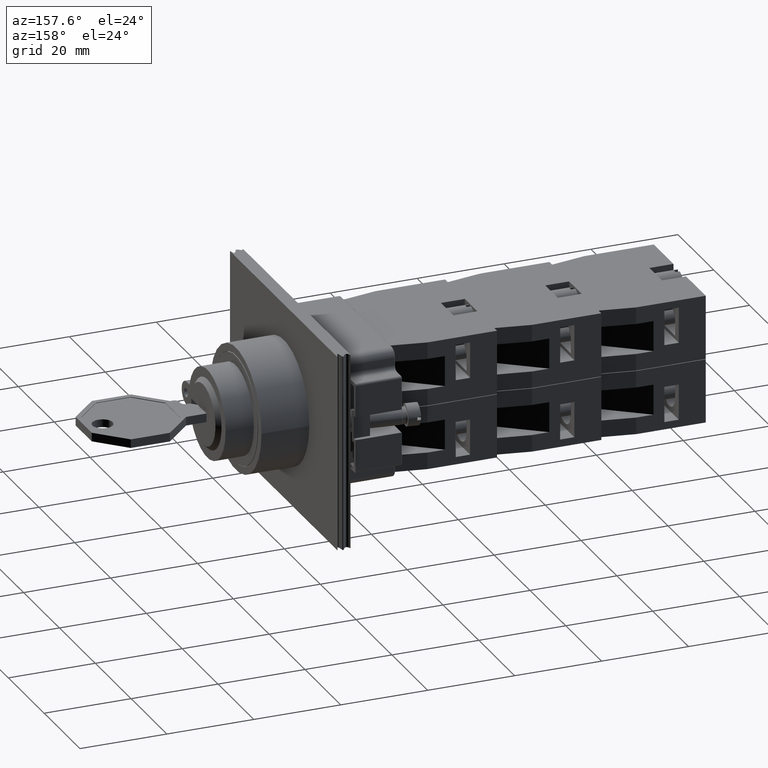
[diagram: clean part render]
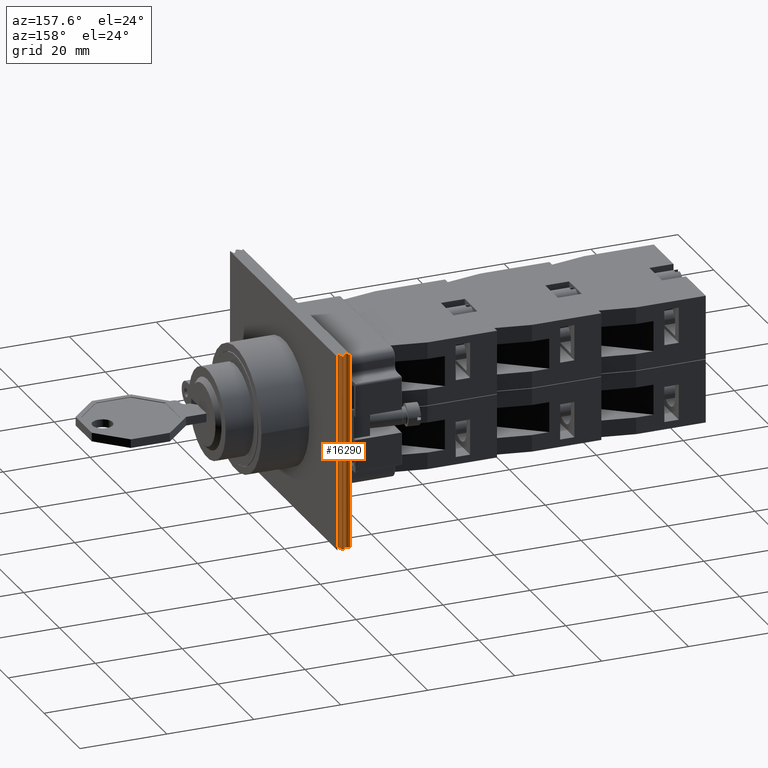
[diagram: same view with one face highlighted and labeled with its STEP entity id]
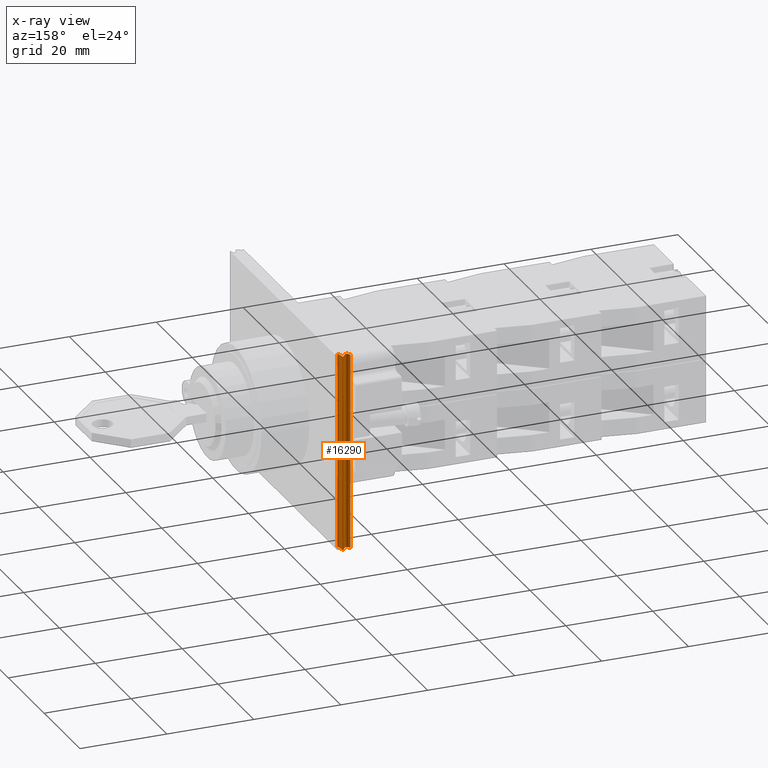
[diagram: x-ray of the same camera — body ghosted, the highlighted face saturated]
A machine part, auxiliary view. The second image highlights one B-rep face of the part: STEP entity #16290.
The next image is the same camera in x-ray: the body ghosted, the highlighted face saturated — about 0% of this face is hidden behind the body in this view.
In plain terms, the highlighted face is a freeform B-spline surface patch.
Its self-contained STEP definition (entity closure, byte-faithful):
#16221=CARTESIAN_POINT('',(-12.704183619849172,-62.725398273954283,45.0));
#16222=VERTEX_POINT('',#16221);
#16229=CARTESIAN_POINT('',(-12.704183619849172,-62.725398273954283,0.0));
#16230=VERTEX_POINT('',#16229);
#16231=CARTESIAN_POINT('',(-12.704183619849172,-62.725398273954283,0.0));
#16232=DIRECTION('',(0.0,0.0,1.0));
#16233=VECTOR('',#16232,45.0);
#16234=LINE('',#16231,#16233);
#16235=EDGE_CURVE('',#16230,#16222,#16234,.T.);
#16250=CARTESIAN_POINT('',(-15.704183619849182,-62.725398273954283,0.0));
#16251=CARTESIAN_POINT('',(-14.283734517597093,-58.710287807173117,0.0));
#16252=CARTESIAN_POINT('',(-13.047229203726467,-69.825373706267470,0.0));
#16253=CARTESIAN_POINT('',(-14.371498841514271,-57.028426828334801,0.0));
#16254=CARTESIAN_POINT('',(-12.704183619849177,-62.725398273954298,0.0));
#16255=CARTESIAN_POINT('',(-15.704183619849182,-62.725398273954283,45.0));
#16256=CARTESIAN_POINT('',(-14.283734517597093,-58.710287807173117,45.0));
#16257=CARTESIAN_POINT('',(-13.047229203726467,-69.825373706267470,45.0));
#16258=CARTESIAN_POINT('',(-14.371498841514271,-57.028426828334801,45.0));
#16259=CARTESIAN_POINT('',(-12.704183619849177,-62.725398273954298,45.0));
#16260=B_SPLINE_SURFACE_WITH_KNOTS('',4,1,((#16250,#16255),(#16251,#16256),(#16252,#16257),(#16253,#16258),(#16254,#16259)),.UNSPECIFIED.,.F.,.F.,.U.,(5,5),(2,2),(0.0,1.0),(0.0,4.500000000000000),.UNSPECIFIED.);
#16261=CARTESIAN_POINT('',(-15.704183619849179,-62.725398273954283,45.0));
#16262=VERTEX_POINT('',#16261);
#16263=CARTESIAN_POINT('',(-12.704183619849177,-62.725398273954298,45.0));
#16264=CARTESIAN_POINT('',(-14.371498841514271,-57.028426828334801,45.0));
#16265=CARTESIAN_POINT('',(-13.047229203726467,-69.825373706267470,45.0));
#16266=CARTESIAN_POINT('',(-14.283734517597093,-58.710287807173117,45.0));
#16267=CARTESIAN_POINT('',(-15.704183619849182,-62.725398273954283,45.0));
#16268=QUASI_UNIFORM_CURVE('',4,(#16263,#16264,#16265,#16266,#16267),.UNSPECIFIED.,.F.,.U.);
#16269=EDGE_CURVE('',#16222,#16262,#16268,.T.);
#16270=ORIENTED_EDGE('',*,*,#16269,.T.);
#16271=CARTESIAN_POINT('',(-15.704183619849179,-62.725398273954283,0.0));
#16272=VERTEX_POINT('',#16271);
#16273=CARTESIAN_POINT('',(-15.704183619849179,-62.725398273954283,0.0));
#16274=DIRECTION('',(0.0,0.0,1.0));
#16275=VECTOR('',#16274,45.0);
#16276=LINE('',#16273,#16275);
#16277=EDGE_CURVE('',#16272,#16262,#16276,.T.);
#16278=ORIENTED_EDGE('',*,*,#16277,.F.);
#16279=CARTESIAN_POINT('',(-15.704183619849182,-62.725398273954283,0.0));
#16280=CARTESIAN_POINT('',(-14.283734517597093,-58.710287807173117,0.0));
#16281=CARTESIAN_POINT('',(-13.047229203726467,-69.825373706267470,0.0));
#16282=CARTESIAN_POINT('',(-14.371498841514271,-57.028426828334801,0.0));
#16283=CARTESIAN_POINT('',(-12.704183619849177,-62.725398273954298,0.0));
#16284=QUASI_UNIFORM_CURVE('',4,(#16279,#16280,#16281,#16282,#16283),.UNSPECIFIED.,.F.,.U.);
#16285=EDGE_CURVE('',#16272,#16230,#16284,.T.);
#16286=ORIENTED_EDGE('',*,*,#16285,.T.);
#16287=ORIENTED_EDGE('',*,*,#16235,.T.);
#16288=EDGE_LOOP('',(#16270,#16278,#16286,#16287));
#16289=FACE_OUTER_BOUND('',#16288,.T.);
#16290=ADVANCED_FACE('',(#16289),#16260,.T.);